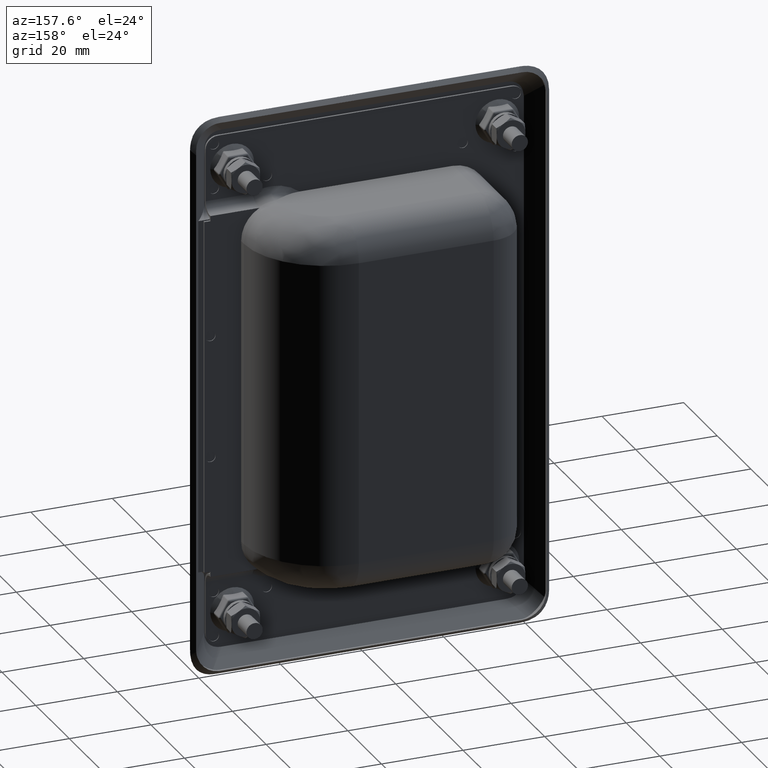
[diagram: clean part render]
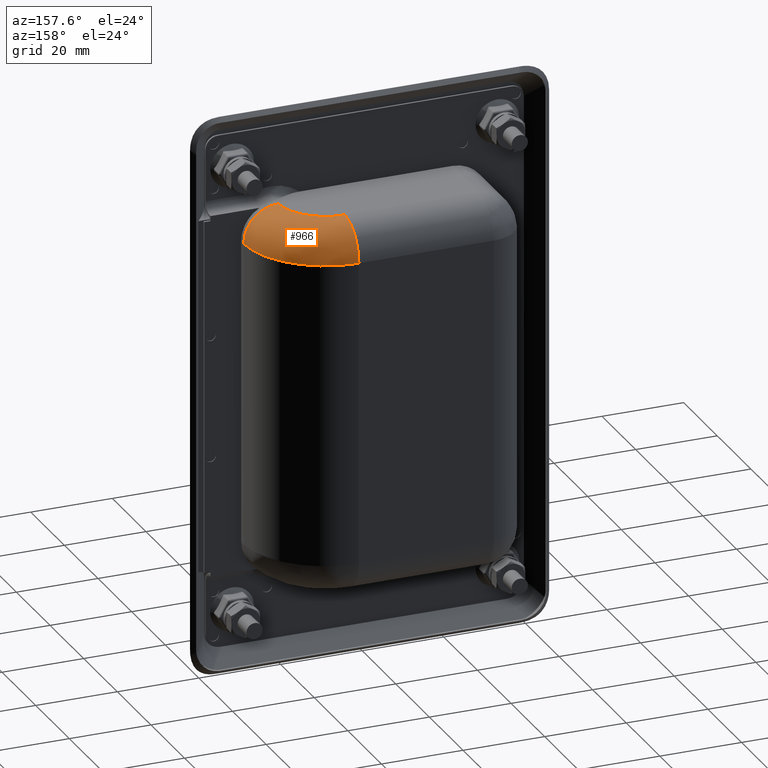
[diagram: same view with one face highlighted and labeled with its STEP entity id]
A machine part, auxiliary view. The second image highlights one B-rep face of the part: STEP entity #966.
In plain terms, the highlighted face is a freeform B-spline surface patch.
Its self-contained STEP definition (entity closure, byte-faithful):
#966=ADVANCED_FACE('',(#3927),#3926,.T.);
#3926=( BOUNDED_SURFACE() B_SPLINE_SURFACE( 2,2,((#8782,#8783,#8784,#8785,#8786),(#8787,#8788,#8789,#8790,#8791),(#8792,#8793,#8794,#8795,#8796),(#8797,#8798,#8799,#8800,#8801),(#8802,#8803,#8804,#8805,#8806),(#8807,#8808,#8809,#8810,#8811),(#8812,#8813,#8814,#8815,#8816)), .UNSPECIFIED.,.T.,.F.,.F.) B_SPLINE_SURFACE_WITH_KNOTS((3,2,2,3),(3,2,3),(0.00000000000E+00,3.33333333333E-01,6.66666666667E-01,1.00000000000E+00),(0.00000000000E+00,5.00000000000E-01,1.00000000000E+00), .UNSPECIFIED. ) GEOMETRIC_REPRESENTATION_ITEM() RATIONAL_B_SPLINE_SURFACE(((1.00000000000E+00,7.07106781186E-01,1.00000000000E+00,7.07106781186E-01,1.00000000000E+00),(5.00000000000E-01,3.53553390593E-01,5.00000000000E-01,3.53553390593E-01,5.00000000000E-01),(1.00000000000E+00,7.07106781186E-01,1.00000000000E+00,7.07106781186E-01,1.00000000000E+00),(5.00000000000E-01,3.53553390593E-01,5.00000000000E-01,3.53553390593E-01,5.00000000000E-01),(1.00000000000E+00,7.07106781186E-01,1.00000000000E+00,7.07106781186E-01,1.00000000000E+00),(5.00000000000E-01,3.53553390593E-01,5.00000000000E-01,3.53553390593E-01,5.00000000000E-01),(1.00000000000E+00,7.07106781186E-01,1.00000000000E+00,7.07106781186E-01,1.00000000000E+00))) REPRESENTATION_ITEM('') SURFACE() );
#3927=FACE_OUTER_BOUND('',#8817,.T.);
#8782=CARTESIAN_POINT('',(1.14999999995E+01,3.00000000016E+00,3.72499999999E+01));
#8783=CARTESIAN_POINT('',(1.14999999995E+01,3.00000000017E+00,4.57500000000E+01));
#8784=CARTESIAN_POINT('',(1.14999999995E+01,-5.49999999983E+00,4.57500000000E+01));
#8785=CARTESIAN_POINT('',(1.14999999995E+01,-1.39999999998E+01,4.57500000000E+01));
#8786=CARTESIAN_POINT('',(1.14999999995E+01,-1.39999999998E+01,3.72500000000E+01));
#8787=CARTESIAN_POINT('',(6.30384757681E+00,3.00000000016E+00,3.72499999999E+01));
#8788=CARTESIAN_POINT('',(6.30384757681E+00,3.00000000017E+00,4.57499999999E+01));
#8789=CARTESIAN_POINT('',(-8.41858428753E+00,-5.49999999983E+00,4.57499999999E+01));
#8790=CARTESIAN_POINT('',(-2.31410161519E+01,-1.39999999998E+01,4.57499999999E+01));
#8791=CARTESIAN_POINT('',(-2.31410161519E+01,-1.39999999998E+01,3.72499999999E+01));
#8792=CARTESIAN_POINT('',(8.90192378816E+00,7.50000000016E+00,3.72499999999E+01));
#8793=CARTESIAN_POINT('',(8.90192378816E+00,7.50000000016E+00,4.57500000000E+01));
#8794=CARTESIAN_POINT('',(1.54070785599E+00,1.17500000002E+01,4.57499999999E+01));
#8795=CARTESIAN_POINT('',(-5.82050807618E+00,1.60000000002E+01,4.57499999999E+01));
#8796=CARTESIAN_POINT('',(-5.82050807618E+00,1.60000000002E+01,3.72499999999E+01));
#8797=CARTESIAN_POINT('',(1.14999999995E+01,1.20000000002E+01,3.72499999999E+01));
#8798=CARTESIAN_POINT('',(1.14999999995E+01,1.20000000001E+01,4.57500000000E+01));
#8799=CARTESIAN_POINT('',(1.14999999995E+01,2.90000000002E+01,4.57500000000E+01));
#8800=CARTESIAN_POINT('',(1.14999999995E+01,4.60000000002E+01,4.57500000000E+01));
#8801=CARTESIAN_POINT('',(1.14999999995E+01,4.60000000002E+01,3.72500000000E+01));
#8802=CARTESIAN_POINT('',(1.40980762109E+01,7.50000000016E+00,3.72500000000E+01));
#8803=CARTESIAN_POINT('',(1.40980762109E+01,7.50000000016E+00,4.57500000000E+01));
#8804=CARTESIAN_POINT('',(2.14592921430E+01,1.17500000002E+01,4.57500000000E+01));
#8805=CARTESIAN_POINT('',(2.88205080752E+01,1.60000000002E+01,4.57500000000E+01));
#8806=CARTESIAN_POINT('',(2.88205080752E+01,1.60000000002E+01,3.72500000000E+01));
#8807=CARTESIAN_POINT('',(1.66961524222E+01,3.00000000016E+00,3.72500000000E+01));
#8808=CARTESIAN_POINT('',(1.66961524222E+01,3.00000000017E+00,4.57500000000E+01));
#8809=CARTESIAN_POINT('',(3.14185842865E+01,-5.49999999983E+00,4.57500000000E+01));
#8810=CARTESIAN_POINT('',(4.61410161509E+01,-1.39999999998E+01,4.57500000000E+01));
#8811=CARTESIAN_POINT('',(4.61410161509E+01,-1.39999999998E+01,3.72500000000E+01));
#8812=CARTESIAN_POINT('',(1.14999999995E+01,3.00000000016E+00,3.72499999999E+01));
#8813=CARTESIAN_POINT('',(1.14999999995E+01,3.00000000017E+00,4.57500000000E+01));
#8814=CARTESIAN_POINT('',(1.14999999995E+01,-5.49999999983E+00,4.57500000000E+01));
#8815=CARTESIAN_POINT('',(1.14999999995E+01,-1.39999999998E+01,4.57500000000E+01));
#8816=CARTESIAN_POINT('',(1.14999999995E+01,-1.39999999998E+01,3.72500000000E+01));
#8817=EDGE_LOOP('',(#12609,#12610,#12611,#12612));
#12609=ORIENTED_EDGE('',*,*,#14928,.T.);
#12610=ORIENTED_EDGE('',*,*,#14929,.T.);
#12611=ORIENTED_EDGE('',*,*,#14927,.T.);
#12612=ORIENTED_EDGE('',*,*,#14930,.F.);
#14927=EDGE_CURVE('',#20354,#20383,#20390,.T.);
#14928=EDGE_CURVE('',#20396,#20397,#20398,.T.);
#14929=EDGE_CURVE('',#20397,#20354,#20404,.T.);
#14930=EDGE_CURVE('',#20396,#20383,#20410,.T.);
#20354=VERTEX_POINT('',#28364);
#20383=VERTEX_POINT('',#28383);
#20390=CIRCLE('',#28390,8.50000000000E+00);
#20396=VERTEX_POINT('',#28391);
#20397=VERTEX_POINT('',#28392);
#20398=CIRCLE('',#28396,8.50000000000E+00);
#20404=CIRCLE('',#28400,1.15000000000E+01);
#20410=CIRCLE('',#28404,2.00000000000E+01);
#28364=CARTESIAN_POINT('',(2.29999999995E+01,6.00000000016E+00,4.57500000000E+01));
#28383=CARTESIAN_POINT('',(3.14999999995E+01,6.00000000016E+00,3.72500000000E+01));
#28387=CARTESIAN_POINT('',(2.29999999995E+01,6.00000000016E+00,3.72500000000E+01));
#28388=DIRECTION('',(0.00000000000E+00,1.00000000000E+00,0.00000000000E+00));
#28389=DIRECTION('',(8.58920777639E-13,-0.00000000000E+00,-1.00000000000E+00));
#28390=AXIS2_PLACEMENT_3D('',#28387,#28388,#28389);
#28391=CARTESIAN_POINT('',(1.14999999995E+01,2.60000000002E+01,3.72500000000E+01));
#28392=CARTESIAN_POINT('',(1.14999999995E+01,1.75000000002E+01,4.57500000000E+01));
#28393=CARTESIAN_POINT('',(1.14999999995E+01,1.75000000002E+01,3.72500000000E+01));
#28394=DIRECTION('',(1.00000000000E+00,-0.00000000000E+00,8.58586078051E-13));
#28395=DIRECTION('',(-0.00000000000E+00,-1.00000000000E+00,-0.00000000000E+00));
#28396=AXIS2_PLACEMENT_3D('',#28393,#28394,#28395);
#28397=CARTESIAN_POINT('',(1.14999999995E+01,6.00000000016E+00,4.57500000000E+01));
#28398=DIRECTION('',(8.58504775871E-13,0.00000000000E+00,-1.00000000000E+00));
#28399=DIRECTION('',(-0.00000000000E+00,-1.00000000000E+00,-0.00000000000E+00));
#28400=AXIS2_PLACEMENT_3D('',#28397,#28398,#28399);
#28401=CARTESIAN_POINT('',(1.14999999995E+01,6.00000000016E+00,3.72499999999E+01));
#28402=DIRECTION('',(8.58504775871E-13,7.62505415138E-29,-1.00000000000E+00));
#28403=DIRECTION('',(8.88178419700E-17,-1.00000000000E+00,-0.00000000000E+00));
#28404=AXIS2_PLACEMENT_3D('',#28401,#28402,#28403);